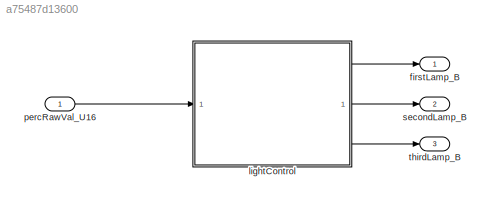
MODEL slx_a75487d13600
KIND model
CONFIG AbsTol = auto
CONFIG EnableMultiTasking = off
CONFIG FixedStep = 0.01
CONFIG MaxStep = auto
CONFIG MinStep = auto
CONFIG RelTol = 1e-3
CONFIG SampleTimeConstraint = Unconstrained
CONFIG SolverName = FixedStepDiscrete
CONFIG StartTime = 0.0
CONFIG StopTime = 10.0
BLOCK [Outport] firstLamp_B
  OutDataTypeStr = boolean
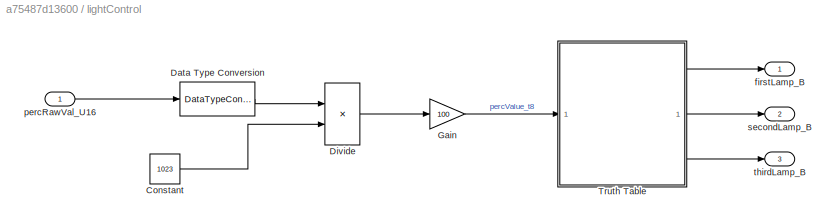
BLOCK [SubSystem] lightControl
  RTWFcnNameOpts = Use subsystem name
  RTWFileNameOpts = Use subsystem name
  RTWSystemCode = Reusable function
  TreatAsAtomicUnit = on
BLOCK [Constant] lightControl/Constant
  OutDataTypeStr = single
  Value = 1023
BLOCK [DataTypeConversion] lightControl/Data Type Conversion
  OutDataTypeStr = single
  RndMeth = Floor
  SaturateOnIntegerOverflow = off
BLOCK [Product] lightControl/Divide
  Inputs = */
BLOCK [Gain] lightControl/Gain
  Gain = 100
  OutDataTypeStr = int8
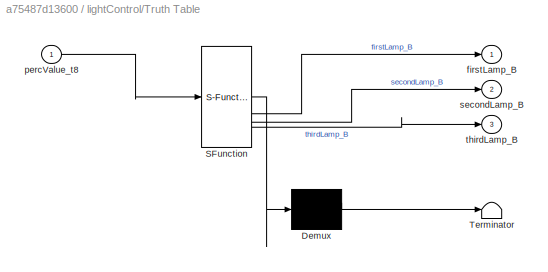
BLOCK [SubSystem] lightControl/Truth Table
  ErrorFcn = Stateflow.Translate.translate
  PermitHierarchicalResolution = ExplicitOnly
  SFBlockType = Truth Table
  TreatAsAtomicUnit = on
BLOCK [Demux] lightControl/Truth Table/ Demux 
  Outputs = 1
BLOCK [S-Function] lightControl/Truth Table/ SFunction 
  EnableBusSupport = on
  FunctionName = sf_sfun
  PortCounts = [1 4]
  SFcnIsStateOwnerBlock = off
  SFunctionDeploymentMode = off
  Tag = Stateflow S-Function 2
BLOCK [Terminator] lightControl/Truth Table/ Terminator 
BLOCK [Outport] lightControl/Truth Table/firstLamp_B
  VectorParamsAs1DForOutWhenUnconnected = off
BLOCK [Inport] lightControl/Truth Table/percValue_t8
BLOCK [Outport] lightControl/Truth Table/secondLamp_B
  Port = 2
BLOCK [Outport] lightControl/Truth Table/thirdLamp_B
  Port = 3
BLOCK [Outport] lightControl/firstLamp_B
  OutDataTypeStr = boolean
BLOCK [Inport] lightControl/percRawVal_U16
  OutDataTypeStr = uint16
BLOCK [Outport] lightControl/secondLamp_B
  OutDataTypeStr = boolean
  Port = 2
BLOCK [Outport] lightControl/thirdLamp_B
  OutDataTypeStr = boolean
  Port = 3
BLOCK [Inport] percRawVal_U16
  OutDataTypeStr = uint16
BLOCK [Outport] secondLamp_B
  OutDataTypeStr = boolean
  Port = 2
BLOCK [Outport] thirdLamp_B
  OutDataTypeStr = boolean
  Port = 3
LINE lightControl/Constant:1 -> lightControl/Divide:2
LINE lightControl/Data Type Conversion:1 -> lightControl/Divide:1
LINE lightControl/Divide:1 -> lightControl/Gain:1
LINE lightControl/Gain:1 -> lightControl/Truth Table:1
LINE lightControl/Truth Table:1 -> lightControl/firstLamp_B:1
LINE lightControl/Truth Table:2 -> lightControl/secondLamp_B:1
LINE lightControl/Truth Table:3 -> lightControl/thirdLamp_B:1
LINE lightControl/percRawVal_U16:1 -> lightControl/Data Type Conversion:1
LINE lightControl:1 -> firstLamp_B:1
LINE lightControl:2 -> secondLamp_B:1
LINE lightControl:3 -> thirdLamp_B:1
LINE percRawVal_U16:1 -> lightControl:1
CHART lightControl/Truth Table states=1 transitions=1
  STATE_LABEL 'tt_blk_kernel'
  STATE_LABEL 'SCRIPT:\nfunction [firstLamp_B, secondLamp_B, thirdLamp_B] = fcn(percValue_t8)\n\naVarTruthTableCondition_1 = false;\naVarTruthTableCondition_2 = false;\naVarTruthTableCondition_3 = false;\n\n\n% Example condition 1\n\naVarTruthTableCondition_1 = logical(percValue_t8 > 60);\n\n% Example condition 2\n\naVarTruthTableCondition_2 = logical(percValue_t8 > 40);\n\n% Condition #3\naVarTruthTableCondition_3 = logical(per...<+771ch>'
CHART  states=0 transitions=0
